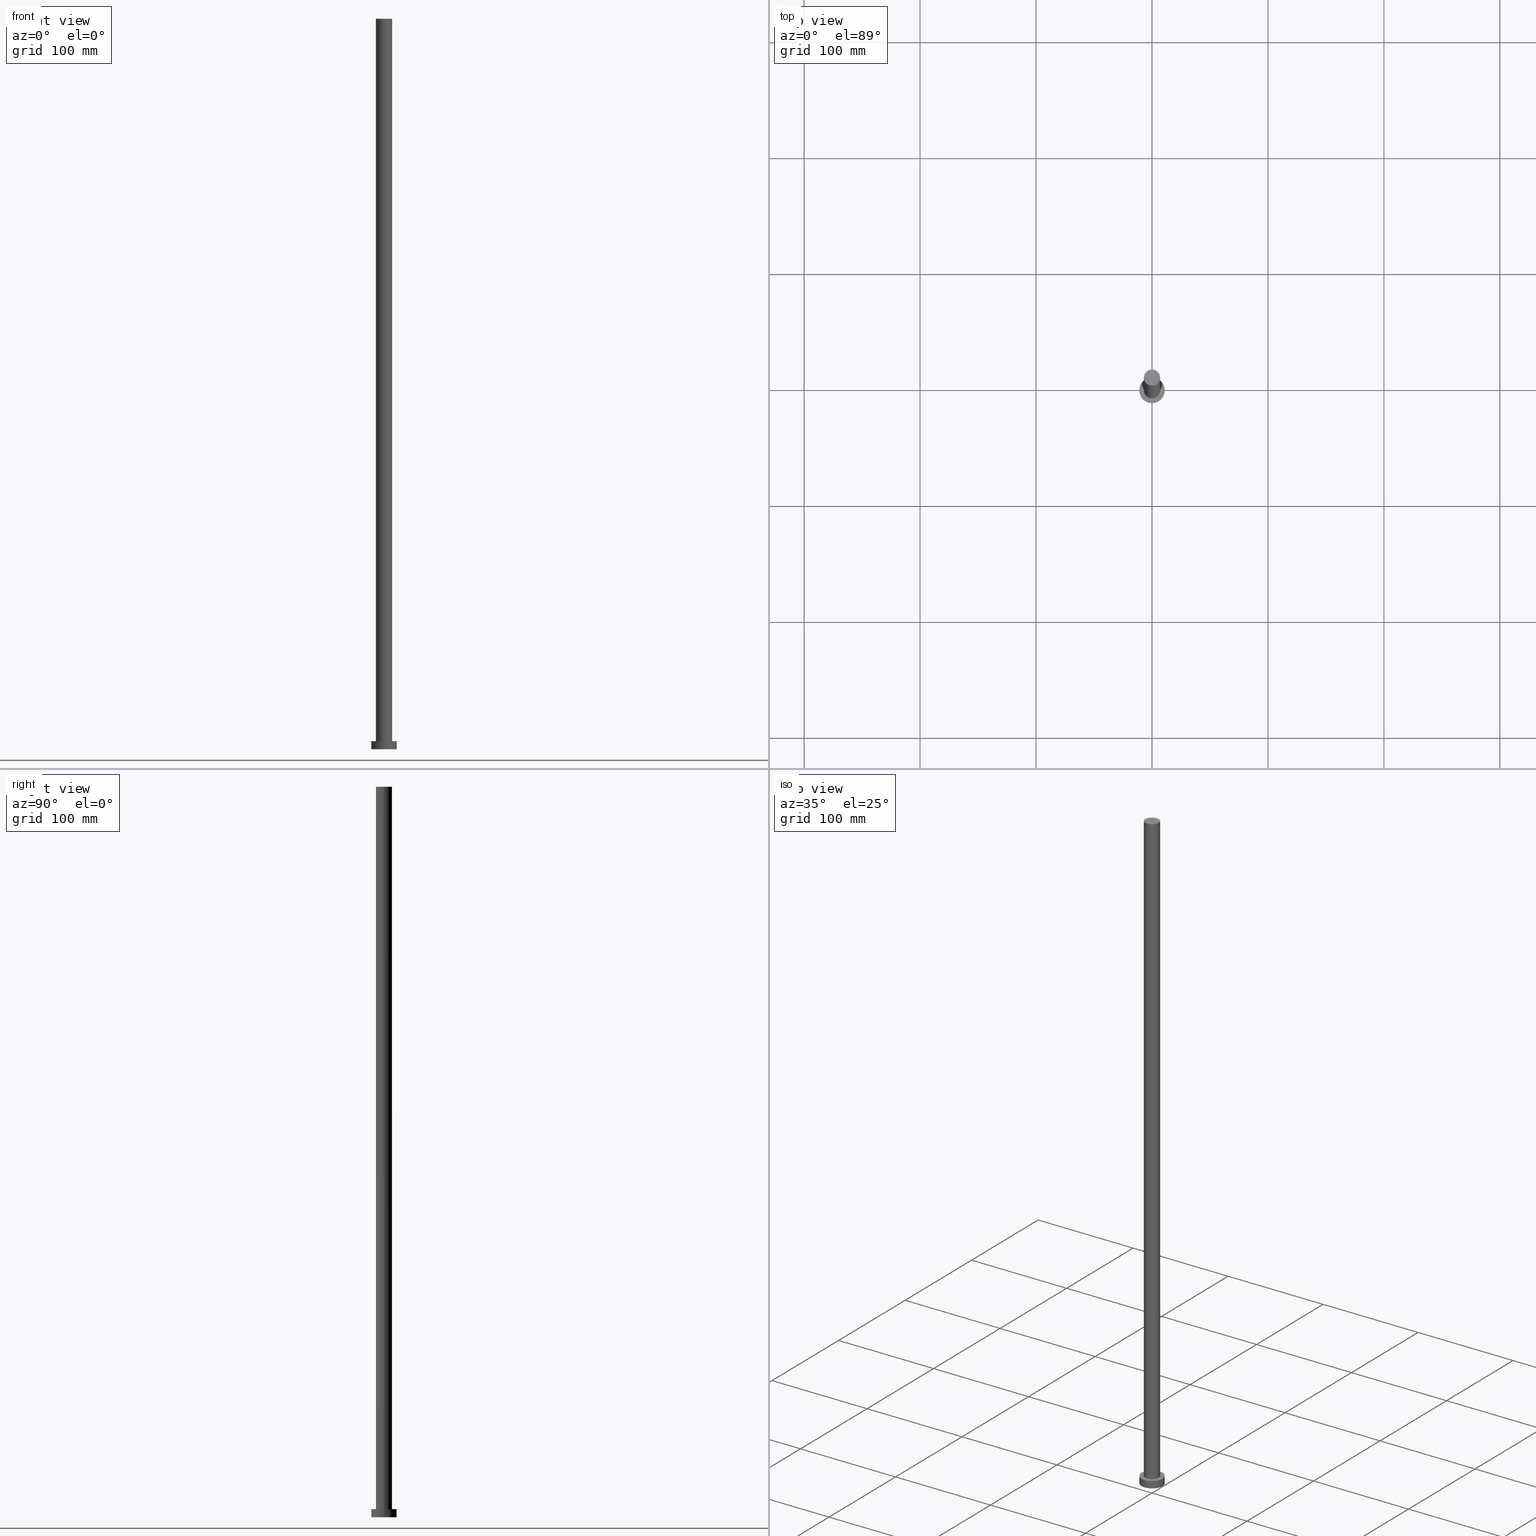
[diagram: canonical four-view strip — front | top / right | iso, engineering-drawing reading convention]
A machine part, canonical four-view strip (front | top / right | iso — engineering-drawing reading convention). The complete STEP part file that produces these views, byte-faithful:
ISO-10303-21;
HEADER;
FILE_DESCRIPTION (( 'STEP AP203' ),
    '1' );
FILE_NAME ('8ec3.STEP',
    '2023-02-13T08:54:11',
    ( '' ),
    ( '' ),
    'SwSTEP 2.0',
    'SolidWorks 2019',
    '' );
FILE_SCHEMA (( 'CONFIG_CONTROL_DESIGN' ));
ENDSEC;

DATA;
#1 = CARTESIAN_POINT ( 'NONE',  ( -7.000000000000000888, 0.000000000000000000, 7.000000000000000000 ) ) ;
#2 = VERTEX_POINT ( 'NONE', #33 ) ;
#3 = LINE ( 'NONE', #43, #13 ) ;
#4 = DIRECTION ( 'NONE',  ( 0.000000000000000000, 0.000000000000000000, 1.000000000000000000 ) ) ;
#5 = PERSON_AND_ORGANIZATION ( #198, #221 ) ;
#6 = ORIENTED_EDGE ( 'NONE', *, *, #175, .F. ) ;
#7 = CARTESIAN_POINT ( 'NONE',  ( 11.00000000000000000, 1.347111479062088405E-15, 7.000000000000000000 ) ) ;
#8 = DIRECTION ( 'NONE',  ( -0.000000000000000000, -0.000000000000000000, -1.000000000000000000 ) ) ;
#9 = ADVANCED_FACE ( 'NONE', ( #131, #40 ), #238, .T. ) ;
#10 = AXIS2_PLACEMENT_3D ( 'NONE', #81, #124, #223 ) ;
#11 = LINE ( 'NONE', #94, #230 ) ;
#12 = ADVANCED_FACE ( 'NONE', ( #135 ), #18, .T. ) ;
#13 = VECTOR ( 'NONE', #119, 1000.000000000000000 ) ;
#14 = APPROVAL_ROLE ( '' ) ;
#15 = DIRECTION ( 'NONE',  ( -0.000000000000000000, -0.000000000000000000, -1.000000000000000000 ) ) ;
#16 = ORIENTED_EDGE ( 'NONE', *, *, #112, .F. ) ;
#17 =( NAMED_UNIT ( * ) PLANE_ANGLE_UNIT ( ) SI_UNIT ( $, .RADIAN. ) );
#18 = CYLINDRICAL_SURFACE ( 'NONE', #215, 11.00000000000000000 ) ;
#19 = AXIS2_PLACEMENT_3D ( 'NONE', #176, #218, #116 ) ;
#20 = DATE_TIME_ROLE ( 'creation_date' ) ;
#21 = DIRECTION ( 'NONE',  ( -1.000000000000000000, 0.000000000000000000, 0.000000000000000000 ) ) ;
#22 = APPLICATION_PROTOCOL_DEFINITION ( 'international standard', 'config_control_design', 1994, #85 ) ;
#23 = PLANE ( 'NONE',  #106 ) ;
#24 = EDGE_CURVE ( 'NONE', #2, #107, #235, .T. ) ;
#25 = SHAPE_DEFINITION_REPRESENTATION ( #171, #60 ) ;
#26 = CIRCLE ( 'NONE', #243, 11.00000000000000000 ) ;
#27 = ORIENTED_EDGE ( 'NONE', *, *, #191, .F. ) ;
#28 = DIRECTION ( 'NONE',  ( -1.000000000000000000, 0.000000000000000000, 0.000000000000000000 ) ) ;
#29 = DATE_AND_TIME ( #209, #174 ) ;
#30 = ORIENTED_EDGE ( 'NONE', *, *, #64, .T. ) ;
#31 = PERSON_AND_ORGANIZATION ( #198, #221 ) ;
#32 = CARTESIAN_POINT ( 'NONE',  ( 11.00000000000000000, 1.347111479062088405E-15, 0.000000000000000000 ) ) ;
#33 = CARTESIAN_POINT ( 'NONE',  ( -7.000000000000000888, 0.000000000000000000, 630.0000000000000000 ) ) ;
#34 = DIRECTION ( 'NONE',  ( 0.000000000000000000, 0.000000000000000000, 1.000000000000000000 ) ) ;
#35 = AXIS2_PLACEMENT_3D ( 'NONE', #74, #77, #219 ) ;
#36 = PRODUCT_DEFINITION_FORMATION_WITH_SPECIFIED_SOURCE ( 'LIBOVOLN�', '', #51, .NOT_KNOWN. ) ;
#37 = DIRECTION ( 'NONE',  ( 0.000000000000000000, 0.000000000000000000, 1.000000000000000000 ) ) ;
#38 = ORIENTED_EDGE ( 'NONE', *, *, #232, .F. ) ;
#39 = DIRECTION ( 'NONE',  ( 0.000000000000000000, 0.000000000000000000, 1.000000000000000000 ) ) ;
#40 = FACE_OUTER_BOUND ( 'NONE', #48, .T. ) ;
#41 = APPROVAL_ROLE ( '' ) ;
#42 = CC_DESIGN_PERSON_AND_ORGANIZATION_ASSIGNMENT ( #250, #150, ( #36 ) ) ;
#43 = CARTESIAN_POINT ( 'NONE',  ( 7.000000000000000888, 8.572527594031474176E-16, 630.0000000000000000 ) ) ;
#44 = AXIS2_PLACEMENT_3D ( 'NONE', #255, #99, #158 ) ;
#45 = EDGE_LOOP ( 'NONE', ( #16, #93, #50, #127 ) ) ;
#46 = VERTEX_POINT ( 'NONE', #32 ) ;
#47 = APPROVAL_PERSON_ORGANIZATION ( #132, #87, #41 ) ;
#48 = EDGE_LOOP ( 'NONE', ( #156, #211 ) ) ;
#49 = APPLICATION_PROTOCOL_DEFINITION ( 'international standard', 'config_control_design', 1994, #69 ) ;
#50 = ORIENTED_EDGE ( 'NONE', *, *, #90, .T. ) ;
#51 = PRODUCT ( '8ec3', '8ec3', '', ( #115 ) ) ;
#52 = CARTESIAN_POINT ( 'NONE',  ( -7.000000000000000888, 0.000000000000000000, 630.0000000000000000 ) ) ;
#53 = APPROVAL_DATE_TIME ( #97, #149 ) ;
#54 = CARTESIAN_POINT ( 'NONE',  ( 0.000000000000000000, 0.000000000000000000, 7.000000000000000000 ) ) ;
#55 = AXIS2_PLACEMENT_3D ( 'NONE', #220, #118, #101 ) ;
#56 = DIRECTION ( 'NONE',  ( 1.000000000000000000, 0.000000000000000000, -0.000000000000000000 ) ) ;
#57 = CALENDAR_DATE ( 2023, 13, 2 ) ;
#58 = EDGE_LOOP ( 'NONE', ( #226, #70 ) ) ;
#59 = LOCAL_TIME ( 9, 54, 11.00000000000000000, #155 ) ;
#60 = ADVANCED_BREP_SHAPE_REPRESENTATION ( '8ec3', ( #204, #184 ), #145 ) ;
#61 = ADVANCED_FACE ( 'NONE', ( #194 ), #140, .T. ) ;
#62 = CALENDAR_DATE ( 2023, 13, 2 ) ;
#63 = EDGE_CURVE ( 'NONE', #130, #83, #11, .T. ) ;
#64 = EDGE_CURVE ( 'NONE', #83, #46, #183, .T. ) ;
#65 = CC_DESIGN_APPROVAL ( #67, ( #164 ) ) ;
#66 = EDGE_LOOP ( 'NONE', ( #246, #182 ) ) ;
#67 = APPROVAL ( #148, 'NEUR�EN�' ) ;
#68 = PERSON_AND_ORGANIZATION_ROLE ( 'creator' ) ;
#69 = APPLICATION_CONTEXT ( 'configuration controlled 3d designs of mechanical parts and assemblies' ) ;
#70 = ORIENTED_EDGE ( 'NONE', *, *, #90, .F. ) ;
#71 = AXIS2_PLACEMENT_3D ( 'NONE', #54, #34, #73 ) ;
#72 = EDGE_LOOP ( 'NONE', ( #91, #27, #88, #123 ) ) ;
#73 = DIRECTION ( 'NONE',  ( 1.000000000000000000, 0.000000000000000000, 0.000000000000000000 ) ) ;
#74 = CARTESIAN_POINT ( 'NONE',  ( 0.000000000000000000, 0.000000000000000000, 7.000000000000000000 ) ) ;
#75 = VERTEX_POINT ( 'NONE', #178 ) ;
#76 = CARTESIAN_POINT ( 'NONE',  ( -11.00000000000000000, 0.000000000000000000, 7.000000000000000000 ) ) ;
#77 = DIRECTION ( 'NONE',  ( -0.000000000000000000, -0.000000000000000000, -1.000000000000000000 ) ) ;
#78 =( NAMED_UNIT ( * ) SI_UNIT ( $, .STERADIAN. ) SOLID_ANGLE_UNIT ( ) );
#79 = DIRECTION ( 'NONE',  ( 0.000000000000000000, 0.000000000000000000, 1.000000000000000000 ) ) ;
#80 = PERSON_AND_ORGANIZATION ( #198, #221 ) ;
#81 = CARTESIAN_POINT ( 'NONE',  ( 0.000000000000000000, 0.000000000000000000, 0.000000000000000000 ) ) ;
#82 = COORDINATED_UNIVERSAL_TIME_OFFSET ( 1, 0, .AHEAD. ) ;
#83 = VERTEX_POINT ( 'NONE', #253 ) ;
#84 = AXIS2_PLACEMENT_3D ( 'NONE', #86, #8, #28 ) ;
#85 = APPLICATION_CONTEXT ( 'configuration controlled 3d designs of mechanical parts and assemblies' ) ;
#86 = CARTESIAN_POINT ( 'NONE',  ( 0.000000000000000000, 0.000000000000000000, 630.0000000000000000 ) ) ;
#87 = APPROVAL ( #239, 'NEUR�EN�' ) ;
#88 = ORIENTED_EDGE ( 'NONE', *, *, #24, .T. ) ;
#89 = FACE_OUTER_BOUND ( 'NONE', #146, .T. ) ;
#90 = EDGE_CURVE ( 'NONE', #160, #107, #201, .T. ) ;
#91 = ORIENTED_EDGE ( 'NONE', *, *, #187, .F. ) ;
#92 = FACE_OUTER_BOUND ( 'NONE', #45, .T. ) ;
#93 = ORIENTED_EDGE ( 'NONE', *, *, #187, .T. ) ;
#94 = CARTESIAN_POINT ( 'NONE',  ( -11.00000000000000000, 0.000000000000000000, 7.000000000000000000 ) ) ;
#95 = AXIS2_PLACEMENT_3D ( 'NONE', #242, #4, #161 ) ;
#96 = DIRECTION ( 'NONE',  ( 1.000000000000000000, 0.000000000000000000, 0.000000000000000000 ) ) ;
#97 = DATE_AND_TIME ( #179, #59 ) ;
#98 = CARTESIAN_POINT ( 'NONE',  ( 0.000000000000000000, 0.000000000000000000, 0.000000000000000000 ) ) ;
#99 = DIRECTION ( 'NONE',  ( 0.000000000000000000, 0.000000000000000000, 1.000000000000000000 ) ) ;
#100 = AXIS2_PLACEMENT_3D ( 'NONE', #113, #37, #56 ) ;
#101 = DIRECTION ( 'NONE',  ( 1.000000000000000000, 0.000000000000000000, 0.000000000000000000 ) ) ;
#102 = DATE_AND_TIME ( #197, #234 ) ;
#103 = PLANE ( 'NONE',  #44 ) ;
#104 = DIRECTION ( 'NONE',  ( -0.000000000000000000, -0.000000000000000000, -1.000000000000000000 ) ) ;
#105 = ORIENTED_EDGE ( 'NONE', *, *, #165, .T. ) ;
#106 = AXIS2_PLACEMENT_3D ( 'NONE', #244, #79, #188 ) ;
#107 = VERTEX_POINT ( 'NONE', #1 ) ;
#108 = ORIENTED_EDGE ( 'NONE', *, *, #175, .T. ) ;
#109 = CARTESIAN_POINT ( 'NONE',  ( 0.000000000000000000, 0.000000000000000000, 630.0000000000000000 ) ) ;
#110 = CIRCLE ( 'NONE', #10, 11.00000000000000000 ) ;
#111 =( LENGTH_UNIT ( ) NAMED_UNIT ( * ) SI_UNIT ( .MILLI., .METRE. ) );
#112 = EDGE_CURVE ( 'NONE', #75, #2, #193, .T. ) ;
#113 = CARTESIAN_POINT ( 'NONE',  ( 0.000000000000000000, 0.000000000000000000, 7.000000000000000000 ) ) ;
#114 = CC_DESIGN_PERSON_AND_ORGANIZATION_ASSIGNMENT ( #5, #163, ( #36 ) ) ;
#115 = MECHANICAL_CONTEXT ( 'NONE', #85, 'mechanical' ) ;
#116 = DIRECTION ( 'NONE',  ( 1.000000000000000000, 0.000000000000000000, 0.000000000000000000 ) ) ;
#117 = DATE_AND_TIME ( #57, #206 ) ;
#118 = DIRECTION ( 'NONE',  ( 0.000000000000000000, 0.000000000000000000, 1.000000000000000000 ) ) ;
#119 = DIRECTION ( 'NONE',  ( -0.000000000000000000, -0.000000000000000000, -1.000000000000000000 ) ) ;
#120 = FACE_OUTER_BOUND ( 'NONE', #136, .T. ) ;
#121 = AXIS2_PLACEMENT_3D ( 'NONE', #177, #237, #153 ) ;
#122 = CC_DESIGN_DATE_AND_TIME_ASSIGNMENT ( #29, #228, ( #164 ) ) ;
#123 = ORIENTED_EDGE ( 'NONE', *, *, #159, .T. ) ;
#124 = DIRECTION ( 'NONE',  ( 0.000000000000000000, 0.000000000000000000, 1.000000000000000000 ) ) ;
#125 = DATE_AND_TIME ( #62, #151 ) ;
#126 = CIRCLE ( 'NONE', #19, 7.000000000000000888 ) ;
#127 = ORIENTED_EDGE ( 'NONE', *, *, #24, .F. ) ;
#128 = VECTOR ( 'NONE', #167, 1000.000000000000000 ) ;
#129 = CIRCLE ( 'NONE', #95, 7.000000000000000888 ) ;
#130 = VERTEX_POINT ( 'NONE', #76 ) ;
#131 = FACE_BOUND ( 'NONE', #58, .T. ) ;
#132 = PERSON_AND_ORGANIZATION ( #198, #221 ) ;
#133 = FACE_OUTER_BOUND ( 'NONE', #66, .T. ) ;
#134 = DIRECTION ( 'NONE',  ( 0.000000000000000000, 0.000000000000000000, 1.000000000000000000 ) ) ;
#135 = FACE_OUTER_BOUND ( 'NONE', #210, .T. ) ;
#136 = EDGE_LOOP ( 'NONE', ( #207, #236 ) ) ;
#137 = EDGE_CURVE ( 'NONE', #208, #130, #26, .T. ) ;
#138 = DIRECTION ( 'NONE',  ( 0.000000000000000000, 0.000000000000000000, 1.000000000000000000 ) ) ;
#139 = COORDINATED_UNIVERSAL_TIME_OFFSET ( 1, 0, .AHEAD. ) ;
#140 = CYLINDRICAL_SURFACE ( 'NONE', #205, 7.000000000000000888 ) ;
#141 = CC_DESIGN_PERSON_AND_ORGANIZATION_ASSIGNMENT ( #80, #241, ( #51 ) ) ;
#142 = CC_DESIGN_APPROVAL ( #87, ( #36 ) ) ;
#143 = UNCERTAINTY_MEASURE_WITH_UNIT (LENGTH_MEASURE( 1.000000000000000082E-05 ), #111, 'distance_accuracy_value', 'NONE');
#144 = SECURITY_CLASSIFICATION_LEVEL ( 'unclassified' ) ;
#145 =( GEOMETRIC_REPRESENTATION_CONTEXT ( 3 ) GLOBAL_UNCERTAINTY_ASSIGNED_CONTEXT ( ( #143 ) ) GLOBAL_UNIT_ASSIGNED_CONTEXT ( ( #111, #17, #78 ) ) REPRESENTATION_CONTEXT ( 'NONE', 'WORKASPACE' ) );
#146 = EDGE_LOOP ( 'NONE', ( #6, #38, #185, #30 ) ) ;
#147 = PRODUCT_DEFINITION ( 'NEZN�M�', '', #36, #240 ) ;
#148 = APPROVAL_STATUS ( 'not_yet_approved' ) ;
#149 = APPROVAL ( #195, 'NEUR�EN�' ) ;
#150 = PERSON_AND_ORGANIZATION_ROLE ( 'creator' ) ;
#151 = LOCAL_TIME ( 9, 54, 11.00000000000000000, #82 ) ;
#152 = PERSON_AND_ORGANIZATION ( #198, #221 ) ;
#153 = DIRECTION ( 'NONE',  ( 1.000000000000000000, 0.000000000000000000, 0.000000000000000000 ) ) ;
#154 = DIRECTION ( 'NONE',  ( 1.000000000000000000, 0.000000000000000000, 0.000000000000000000 ) ) ;
#155 = COORDINATED_UNIVERSAL_TIME_OFFSET ( 1, 0, .AHEAD. ) ;
#156 = ORIENTED_EDGE ( 'NONE', *, *, #232, .T. ) ;
#157 = APPROVAL_PERSON_ORGANIZATION ( #186, #67, #181 ) ;
#158 = DIRECTION ( 'NONE',  ( 1.000000000000000000, 0.000000000000000000, -0.000000000000000000 ) ) ;
#159 = EDGE_CURVE ( 'NONE', #107, #160, #126, .T. ) ;
#160 = VERTEX_POINT ( 'NONE', #180 ) ;
#161 = DIRECTION ( 'NONE',  ( 1.000000000000000000, 0.000000000000000000, 0.000000000000000000 ) ) ;
#162 = CC_DESIGN_APPROVAL ( #149, ( #147 ) ) ;
#163 = PERSON_AND_ORGANIZATION_ROLE ( 'design_supplier' ) ;
#164 = SECURITY_CLASSIFICATION ( '', '', #144 ) ;
#165 = EDGE_CURVE ( 'NONE', #46, #83, #110, .T. ) ;
#166 = CC_DESIGN_DATE_AND_TIME_ASSIGNMENT ( #117, #20, ( #147 ) ) ;
#167 = DIRECTION ( 'NONE',  ( -0.000000000000000000, -0.000000000000000000, -1.000000000000000000 ) ) ;
#168 = CC_DESIGN_SECURITY_CLASSIFICATION ( #164, ( #36 ) ) ;
#169 = CYLINDRICAL_SURFACE ( 'NONE', #35, 11.00000000000000000 ) ;
#170 = PERSON_AND_ORGANIZATION_ROLE ( 'classification_officer' ) ;
#171 = PRODUCT_DEFINITION_SHAPE ( 'NONE', 'NONE',  #147 ) ;
#172 = CYLINDRICAL_SURFACE ( 'NONE', #84, 7.000000000000000888 ) ;
#173 = CIRCLE ( 'NONE', #121, 11.00000000000000000 ) ;
#174 = LOCAL_TIME ( 9, 54, 11.00000000000000000, #245 ) ;
#175 = EDGE_CURVE ( 'NONE', #208, #46, #222, .T. ) ;
#176 = CARTESIAN_POINT ( 'NONE',  ( 0.000000000000000000, 0.000000000000000000, 7.000000000000000000 ) ) ;
#177 = CARTESIAN_POINT ( 'NONE',  ( 0.000000000000000000, 0.000000000000000000, 7.000000000000000000 ) ) ;
#178 = CARTESIAN_POINT ( 'NONE',  ( 7.000000000000000888, 8.572527594031474176E-16, 630.0000000000000000 ) ) ;
#179 = CALENDAR_DATE ( 2023, 13, 2 ) ;
#180 = CARTESIAN_POINT ( 'NONE',  ( 7.000000000000000888, 8.572527594031474176E-16, 7.000000000000000000 ) ) ;
#181 = APPROVAL_ROLE ( '' ) ;
#182 = ORIENTED_EDGE ( 'NONE', *, *, #165, .F. ) ;
#183 = CIRCLE ( 'NONE', #55, 11.00000000000000000 ) ;
#184 = AXIS2_PLACEMENT_3D ( 'NONE', #98, #39, #196 ) ;
#185 = ORIENTED_EDGE ( 'NONE', *, *, #63, .T. ) ;
#186 = PERSON_AND_ORGANIZATION ( #198, #221 ) ;
#187 = EDGE_CURVE ( 'NONE', #75, #160, #3, .T. ) ;
#188 = DIRECTION ( 'NONE',  ( 1.000000000000000000, 0.000000000000000000, -0.000000000000000000 ) ) ;
#189 = CLOSED_SHELL ( 'NONE', ( #202, #12, #229, #9, #231, #61, #200 ) ) ;
#190 = DIRECTION ( 'NONE',  ( -0.000000000000000000, -0.000000000000000000, -1.000000000000000000 ) ) ;
#191 = EDGE_CURVE ( 'NONE', #2, #75, #129, .T. ) ;
#192 = COORDINATED_UNIVERSAL_TIME_OFFSET ( 1, 0, .AHEAD. ) ;
#193 = CIRCLE ( 'NONE', #251, 7.000000000000000888 ) ;
#194 = FACE_OUTER_BOUND ( 'NONE', #72, .T. ) ;
#195 = APPROVAL_STATUS ( 'not_yet_approved' ) ;
#196 = DIRECTION ( 'NONE',  ( 1.000000000000000000, 0.000000000000000000, 0.000000000000000000 ) ) ;
#197 = CALENDAR_DATE ( 2023, 13, 2 ) ;
#198 = PERSON ( 'NEUR�EN�', 'NEUR�EN�', 'NEUR�EN�', ('NEUR�EN�'), ('NEUR�EN�'), ('NEUR�EN�') ) ;
#199 = DIRECTION ( 'NONE',  ( -1.000000000000000000, 0.000000000000000000, 0.000000000000000000 ) ) ;
#200 = ADVANCED_FACE ( 'NONE', ( #120 ), #23, .T. ) ;
#201 = CIRCLE ( 'NONE', #71, 7.000000000000000888 ) ;
#202 = ADVANCED_FACE ( 'NONE', ( #92 ), #172, .T. ) ;
#203 = APPROVAL_DATE_TIME ( #125, #67 ) ;
#204 = MANIFOLD_SOLID_BREP ( 'P�idat vysunut�m3', #189 ) ;
#205 = AXIS2_PLACEMENT_3D ( 'NONE', #109, #190, #21 ) ;
#206 = LOCAL_TIME ( 9, 54, 11.00000000000000000, #139 ) ;
#207 = ORIENTED_EDGE ( 'NONE', *, *, #191, .T. ) ;
#208 = VERTEX_POINT ( 'NONE', #247 ) ;
#209 = CALENDAR_DATE ( 2023, 13, 2 ) ;
#210 = EDGE_LOOP ( 'NONE', ( #224, #108, #105, #249 ) ) ;
#211 = ORIENTED_EDGE ( 'NONE', *, *, #137, .T. ) ;
#212 = DIRECTION ( 'NONE',  ( -0.000000000000000000, -0.000000000000000000, -1.000000000000000000 ) ) ;
#213 = CC_DESIGN_PERSON_AND_ORGANIZATION_ASSIGNMENT ( #248, #170, ( #164 ) ) ;
#214 = CARTESIAN_POINT ( 'NONE',  ( 0.000000000000000000, 0.000000000000000000, 7.000000000000000000 ) ) ;
#215 = AXIS2_PLACEMENT_3D ( 'NONE', #217, #15, #199 ) ;
#216 = APPROVAL_DATE_TIME ( #102, #87 ) ;
#217 = CARTESIAN_POINT ( 'NONE',  ( 0.000000000000000000, 0.000000000000000000, 7.000000000000000000 ) ) ;
#218 = DIRECTION ( 'NONE',  ( 0.000000000000000000, 0.000000000000000000, 1.000000000000000000 ) ) ;
#219 = DIRECTION ( 'NONE',  ( -1.000000000000000000, 0.000000000000000000, 0.000000000000000000 ) ) ;
#220 = CARTESIAN_POINT ( 'NONE',  ( 0.000000000000000000, 0.000000000000000000, 0.000000000000000000 ) ) ;
#221 = ORGANIZATION ( 'NEUR�EN�', 'NEUR�EN�', '' ) ;
#222 = LINE ( 'NONE', #7, #128 ) ;
#223 = DIRECTION ( 'NONE',  ( 1.000000000000000000, 0.000000000000000000, 0.000000000000000000 ) ) ;
#224 = ORIENTED_EDGE ( 'NONE', *, *, #137, .F. ) ;
#225 = PRODUCT_RELATED_PRODUCT_CATEGORY ( 'detail', '', ( #51 ) ) ;
#226 = ORIENTED_EDGE ( 'NONE', *, *, #159, .F. ) ;
#227 = CC_DESIGN_PERSON_AND_ORGANIZATION_ASSIGNMENT ( #31, #68, ( #147 ) ) ;
#228 = DATE_TIME_ROLE ( 'classification_date' ) ;
#229 = ADVANCED_FACE ( 'NONE', ( #89 ), #169, .T. ) ;
#230 = VECTOR ( 'NONE', #104, 1000.000000000000000 ) ;
#231 = ADVANCED_FACE ( 'NONE', ( #133 ), #103, .F. ) ;
#232 = EDGE_CURVE ( 'NONE', #130, #208, #173, .T. ) ;
#233 = VECTOR ( 'NONE', #212, 1000.000000000000000 ) ;
#234 = LOCAL_TIME ( 9, 54, 11.00000000000000000, #192 ) ;
#235 = LINE ( 'NONE', #52, #233 ) ;
#236 = ORIENTED_EDGE ( 'NONE', *, *, #112, .T. ) ;
#237 = DIRECTION ( 'NONE',  ( 0.000000000000000000, 0.000000000000000000, 1.000000000000000000 ) ) ;
#238 = PLANE ( 'NONE',  #100 ) ;
#239 = APPROVAL_STATUS ( 'not_yet_approved' ) ;
#240 = DESIGN_CONTEXT ( 'detailed design', #69, 'design' ) ;
#241 = PERSON_AND_ORGANIZATION_ROLE ( 'design_owner' ) ;
#242 = CARTESIAN_POINT ( 'NONE',  ( 0.000000000000000000, 0.000000000000000000, 630.0000000000000000 ) ) ;
#243 = AXIS2_PLACEMENT_3D ( 'NONE', #214, #138, #96 ) ;
#244 = CARTESIAN_POINT ( 'NONE',  ( 0.000000000000000000, 0.000000000000000000, 630.0000000000000000 ) ) ;
#245 = COORDINATED_UNIVERSAL_TIME_OFFSET ( 1, 0, .AHEAD. ) ;
#246 = ORIENTED_EDGE ( 'NONE', *, *, #64, .F. ) ;
#247 = CARTESIAN_POINT ( 'NONE',  ( 11.00000000000000000, 1.347111479062088405E-15, 7.000000000000000000 ) ) ;
#248 = PERSON_AND_ORGANIZATION ( #198, #221 ) ;
#249 = ORIENTED_EDGE ( 'NONE', *, *, #63, .F. ) ;
#250 = PERSON_AND_ORGANIZATION ( #198, #221 ) ;
#251 = AXIS2_PLACEMENT_3D ( 'NONE', #254, #134, #154 ) ;
#252 = APPROVAL_PERSON_ORGANIZATION ( #152, #149, #14 ) ;
#253 = CARTESIAN_POINT ( 'NONE',  ( -11.00000000000000000, 0.000000000000000000, 0.000000000000000000 ) ) ;
#254 = CARTESIAN_POINT ( 'NONE',  ( 0.000000000000000000, 0.000000000000000000, 630.0000000000000000 ) ) ;
#255 = CARTESIAN_POINT ( 'NONE',  ( 0.000000000000000000, 0.000000000000000000, 0.000000000000000000 ) ) ;
ENDSEC;
END-ISO-10303-21;
